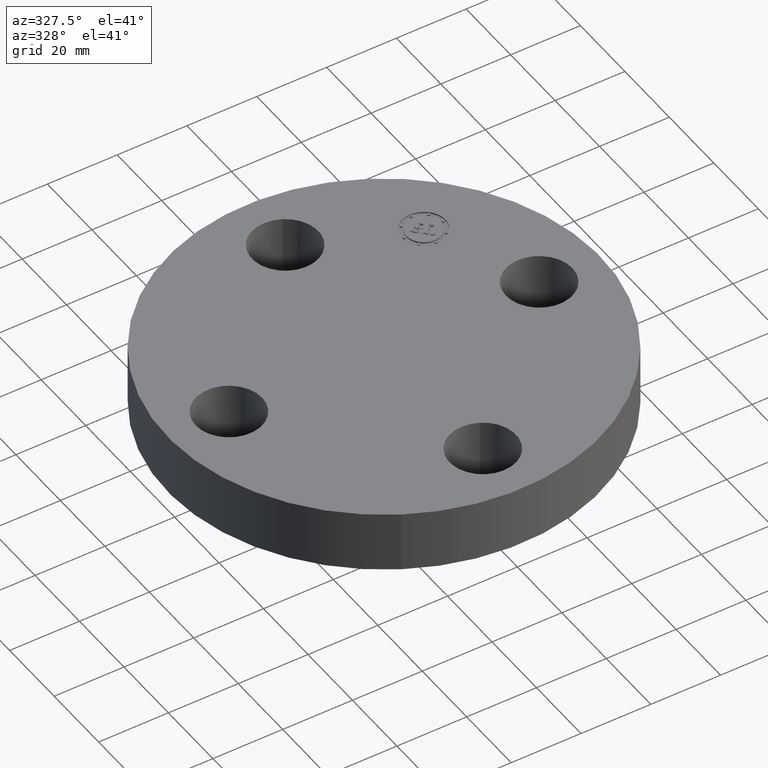
[diagram: clean part render]
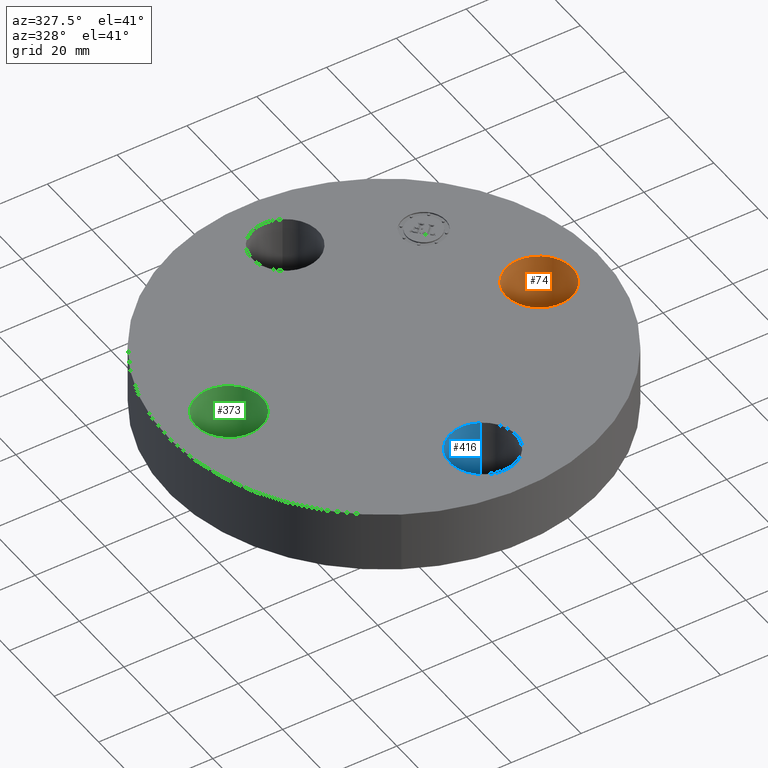
[diagram: same view with three faces highlighted in distinct colors, each labeled with its STEP entity id]
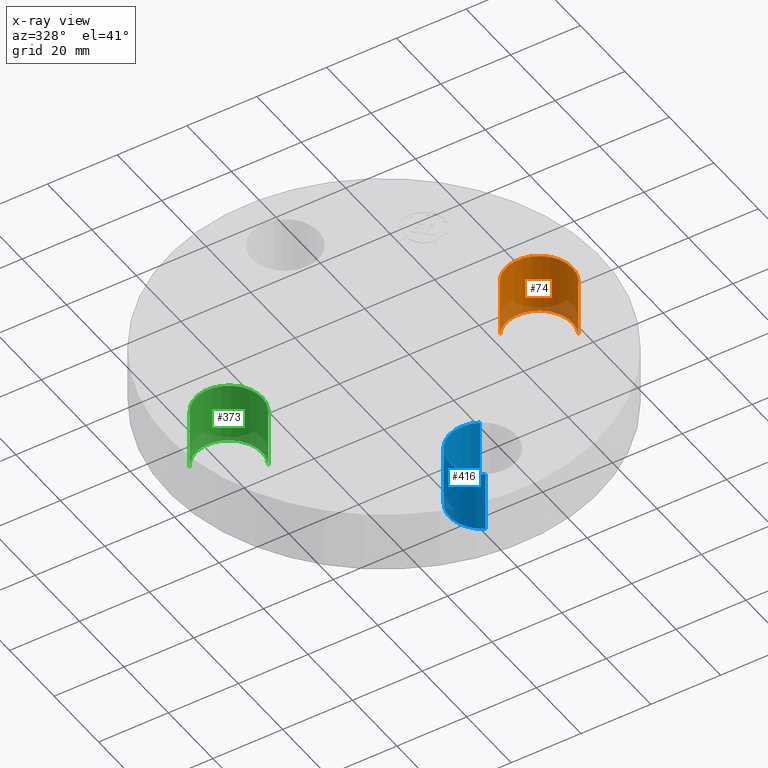
[diagram: x-ray of the same camera — body ghosted, the three highlighted faces saturated]
A machine part, auxiliary view with three faces highlighted in distinct colors.
The next image is the same camera in x-ray (body ghosted, the three faces saturated) — at least one of them is partly hidden behind the body in this view.
Their STEP definitions:

[orange] entity #74 — the highlighted cylindrical surface (partial cylindrical patch) has radius 9.525 mm, axis along (0, -0, -1).
#38=AXIS2_PLACEMENT_3D('Cylinder Axis2P3D',#35,#36,#37) ;
#51=AXIS2_PLACEMENT_3D('Circle Axis2P3D',#49,#50,$) ;
#65=AXIS2_PLACEMENT_3D('Circle Axis2P3D',#63,#64,$) ;
#35=CARTESIAN_POINT('Axis2P3D Location',(1.75000000001,0.,0.686062992129)) ;
#40=CARTESIAN_POINT('Line Origine',(1.4209065393,0.179784576977,0.345000000001)) ;
#44=CARTESIAN_POINT('Vertex',(1.4209065393,0.179784576977,0.)) ;
#46=CARTESIAN_POINT('Vertex',(1.4209065393,0.179784576977,0.690000000003)) ;
#49=CARTESIAN_POINT('Axis2P3D Location',(1.75000000001,0.,0.)) ;
#53=CARTESIAN_POINT('Vertex',(2.07909346072,-0.179784576977,0.)) ;
#56=CARTESIAN_POINT('Line Origine',(2.07909346072,-0.179784576977,0.345000000001)) ;
#60=CARTESIAN_POINT('Vertex',(2.07909346072,-0.179784576977,0.690000000003)) ;
#63=CARTESIAN_POINT('Axis2P3D Location',(1.75000000001,0.,0.690000000003)) ;
#36=DIRECTION('Axis2P3D Direction',(0.,-0.,-0.0393700787402)) ;
#37=DIRECTION('Axis2P3D XDirection',(0.0345504945626,-0.0188750212049,0.)) ;
#41=DIRECTION('Vector Direction',(0.,0.,-0.0393700787402)) ;
#50=DIRECTION('Axis2P3D Direction',(0.,-0.,-0.0393700787402)) ;
#57=DIRECTION('Vector Direction',(0.,0.,-0.0393700787402)) ;
#64=DIRECTION('Axis2P3D Direction',(0.,-0.,-0.0393700787402)) ;
#42=VECTOR('Line Direction',#41,0.0393700787402) ;
#58=VECTOR('Line Direction',#57,0.0393700787402) ;
#69=ORIENTED_EDGE('',*,*,#48,.F.) ;
#70=ORIENTED_EDGE('',*,*,#55,.T.) ;
#71=ORIENTED_EDGE('',*,*,#62,.T.) ;
#72=ORIENTED_EDGE('',*,*,#67,.F.) ;
#74=ADVANCED_FACE('PartBody',(#73),#39,.F.) ;
#52=CIRCLE('generated circle',#51,0.375000000001) ;
#66=CIRCLE('generated circle',#65,0.375000000001) ;
#39=CYLINDRICAL_SURFACE('generated cylinder',#38,0.375000000001) ;
#48=EDGE_CURVE('',#45,#47,#43,.F.) ;
#55=EDGE_CURVE('',#45,#54,#52,.T.) ;
#62=EDGE_CURVE('',#54,#61,#59,.F.) ;
#67=EDGE_CURVE('',#47,#61,#66,.T.) ;
#68=EDGE_LOOP('',(#69,#70,#71,#72)) ;
#73=FACE_OUTER_BOUND('',#68,.T.) ;
#43=LINE('Line',#40,#42) ;
#59=LINE('Line',#56,#58) ;
#45=VERTEX_POINT('',#44) ;
#47=VERTEX_POINT('',#46) ;
#54=VERTEX_POINT('',#53) ;
#61=VERTEX_POINT('',#60) ;

[blue] entity #416 — the highlighted cylindrical surface (partial cylindrical patch) has radius 9.525 mm, axis along (0, -0, -1).
#244=AXIS2_PLACEMENT_3D('Circle Axis2P3D',#242,#243,$) ;
#377=AXIS2_PLACEMENT_3D('Cylinder Axis2P3D',#374,#375,#376) ;
#407=AXIS2_PLACEMENT_3D('Circle Axis2P3D',#405,#406,$) ;
#237=CARTESIAN_POINT('Vertex',(0.179784576977,-1.4209065393,0.)) ;
#239=CARTESIAN_POINT('Vertex',(-0.179784576977,-2.07909346072,0.)) ;
#242=CARTESIAN_POINT('Axis2P3D Location',(-3.49676543189E-016,-1.75000000001,0.)) ;
#374=CARTESIAN_POINT('Axis2P3D Location',(-1.72584639625E-016,-1.75000000001,0.686062992129)) ;
#379=CARTESIAN_POINT('Line Origine',(0.179784576977,-1.4209065393,0.345000000001)) ;
#383=CARTESIAN_POINT('Vertex',(0.179784576977,-1.4209065393,0.690000000003)) ;
#386=CARTESIAN_POINT('Line Origine',(-0.179784576977,-2.07909346072,0.345000000001)) ;
#390=CARTESIAN_POINT('Vertex',(-0.179784576977,-2.07909346072,0.690000000003)) ;
#405=CARTESIAN_POINT('Axis2P3D Location',(-1.72584639625E-016,-1.75000000001,0.690000000003)) ;
#243=DIRECTION('Axis2P3D Direction',(0.,0.,-0.0393700787402)) ;
#375=DIRECTION('Axis2P3D Direction',(0.,-0.,-0.0393700787402)) ;
#376=DIRECTION('Axis2P3D XDirection',(-0.0188750212049,-0.0345504945626,0.)) ;
#380=DIRECTION('Vector Direction',(0.,0.,-0.0393700787402)) ;
#387=DIRECTION('Vector Direction',(0.,0.,-0.0393700787402)) ;
#406=DIRECTION('Axis2P3D Direction',(0.,-0.,-0.0393700787402)) ;
#381=VECTOR('Line Direction',#380,0.0393700787402) ;
#388=VECTOR('Line Direction',#387,0.0393700787402) ;
#411=ORIENTED_EDGE('',*,*,#392,.F.) ;
#412=ORIENTED_EDGE('',*,*,#246,.T.) ;
#413=ORIENTED_EDGE('',*,*,#385,.T.) ;
#414=ORIENTED_EDGE('',*,*,#409,.F.) ;
#416=ADVANCED_FACE('PartBody',(#415),#378,.F.) ;
#245=CIRCLE('generated circle',#244,0.375000000001) ;
#408=CIRCLE('generated circle',#407,0.375000000001) ;
#378=CYLINDRICAL_SURFACE('generated cylinder',#377,0.375000000001) ;
#246=EDGE_CURVE('',#240,#238,#245,.T.) ;
#385=EDGE_CURVE('',#238,#384,#382,.F.) ;
#392=EDGE_CURVE('',#240,#391,#389,.F.) ;
#409=EDGE_CURVE('',#391,#384,#408,.T.) ;
#410=EDGE_LOOP('',(#411,#412,#413,#414)) ;
#415=FACE_OUTER_BOUND('',#410,.T.) ;
#382=LINE('Line',#379,#381) ;
#389=LINE('Line',#386,#388) ;
#238=VERTEX_POINT('',#237) ;
#240=VERTEX_POINT('',#239) ;
#384=VERTEX_POINT('',#383) ;
#391=VERTEX_POINT('',#390) ;

[green] entity #373 — the highlighted cylindrical surface (partial cylindrical patch) has radius 9.525 mm, axis along (-0, 0, -1).
#262=AXIS2_PLACEMENT_3D('Circle Axis2P3D',#260,#261,$) ;
#334=AXIS2_PLACEMENT_3D('Cylinder Axis2P3D',#331,#332,#333) ;
#364=AXIS2_PLACEMENT_3D('Circle Axis2P3D',#362,#363,$) ;
#255=CARTESIAN_POINT('Vertex',(-1.4209065393,-0.179784576977,0.)) ;
#257=CARTESIAN_POINT('Vertex',(-2.07909346072,0.179784576977,0.)) ;
#260=CARTESIAN_POINT('Axis2P3D Location',(-1.75000000001,-2.79741234551E-016,0.)) ;
#331=CARTESIAN_POINT('Axis2P3D Location',(-1.75000000001,-2.14313189852E-016,0.686062992129)) ;
#336=CARTESIAN_POINT('Line Origine',(-1.4209065393,-0.179784576977,0.345000000001)) ;
#340=CARTESIAN_POINT('Vertex',(-1.4209065393,-0.179784576977,0.690000000003)) ;
#343=CARTESIAN_POINT('Line Origine',(-2.07909346072,0.179784576977,0.345000000001)) ;
#347=CARTESIAN_POINT('Vertex',(-2.07909346072,0.179784576977,0.690000000003)) ;
#362=CARTESIAN_POINT('Axis2P3D Location',(-1.75000000001,-2.14313189852E-016,0.690000000003)) ;
#261=DIRECTION('Axis2P3D Direction',(0.,0.,-0.0393700787402)) ;
#332=DIRECTION('Axis2P3D Direction',(-0.,0.,-0.0393700787402)) ;
#333=DIRECTION('Axis2P3D XDirection',(-0.0345504945626,0.0188750212049,0.)) ;
#337=DIRECTION('Vector Direction',(0.,0.,-0.0393700787402)) ;
#344=DIRECTION('Vector Direction',(0.,0.,-0.0393700787402)) ;
#363=DIRECTION('Axis2P3D Direction',(-0.,0.,-0.0393700787402)) ;
#338=VECTOR('Line Direction',#337,0.0393700787402) ;
#345=VECTOR('Line Direction',#344,0.0393700787402) ;
#368=ORIENTED_EDGE('',*,*,#349,.F.) ;
#369=ORIENTED_EDGE('',*,*,#264,.T.) ;
#370=ORIENTED_EDGE('',*,*,#342,.T.) ;
#371=ORIENTED_EDGE('',*,*,#366,.F.) ;
#373=ADVANCED_FACE('PartBody',(#372),#335,.F.) ;
#263=CIRCLE('generated circle',#262,0.375000000002) ;
#365=CIRCLE('generated circle',#364,0.375000000002) ;
#335=CYLINDRICAL_SURFACE('generated cylinder',#334,0.375000000002) ;
#264=EDGE_CURVE('',#258,#256,#263,.T.) ;
#342=EDGE_CURVE('',#256,#341,#339,.F.) ;
#349=EDGE_CURVE('',#258,#348,#346,.F.) ;
#366=EDGE_CURVE('',#348,#341,#365,.T.) ;
#367=EDGE_LOOP('',(#368,#369,#370,#371)) ;
#372=FACE_OUTER_BOUND('',#367,.T.) ;
#339=LINE('Line',#336,#338) ;
#346=LINE('Line',#343,#345) ;
#256=VERTEX_POINT('',#255) ;
#258=VERTEX_POINT('',#257) ;
#341=VERTEX_POINT('',#340) ;
#348=VERTEX_POINT('',#347) ;